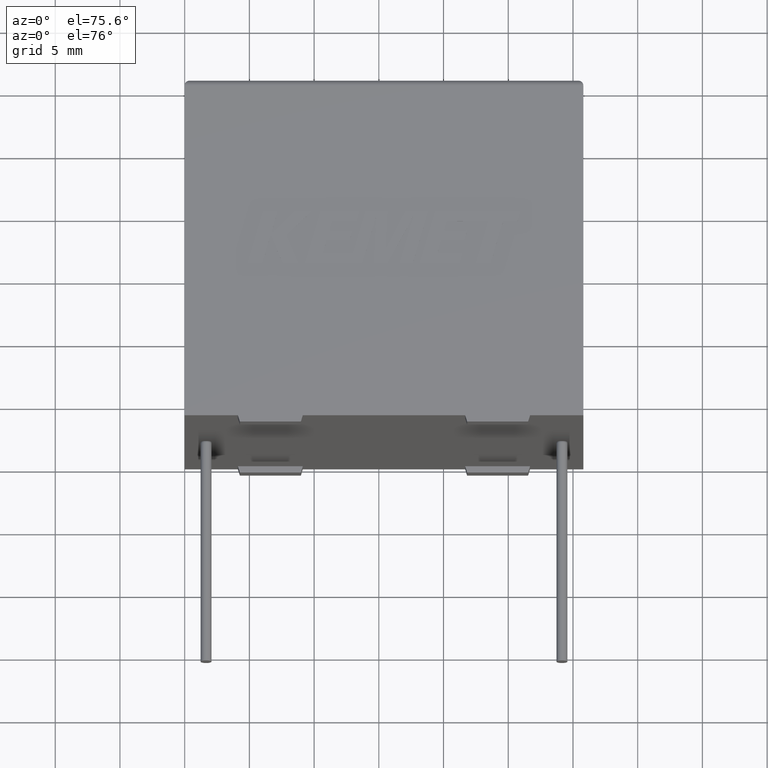
[diagram: clean part render]
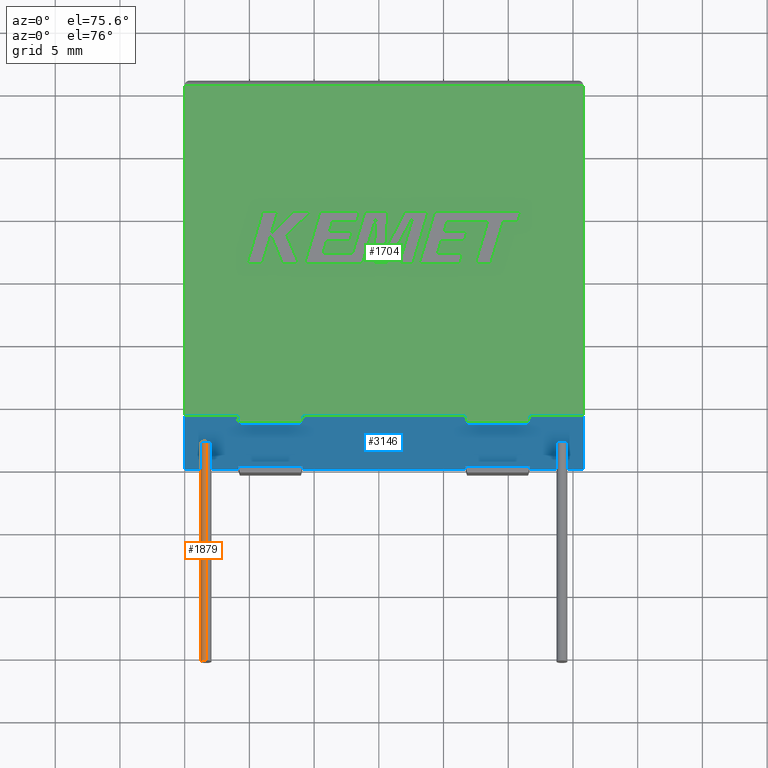
[diagram: same view with three faces highlighted in distinct colors, each labeled with its STEP entity id]
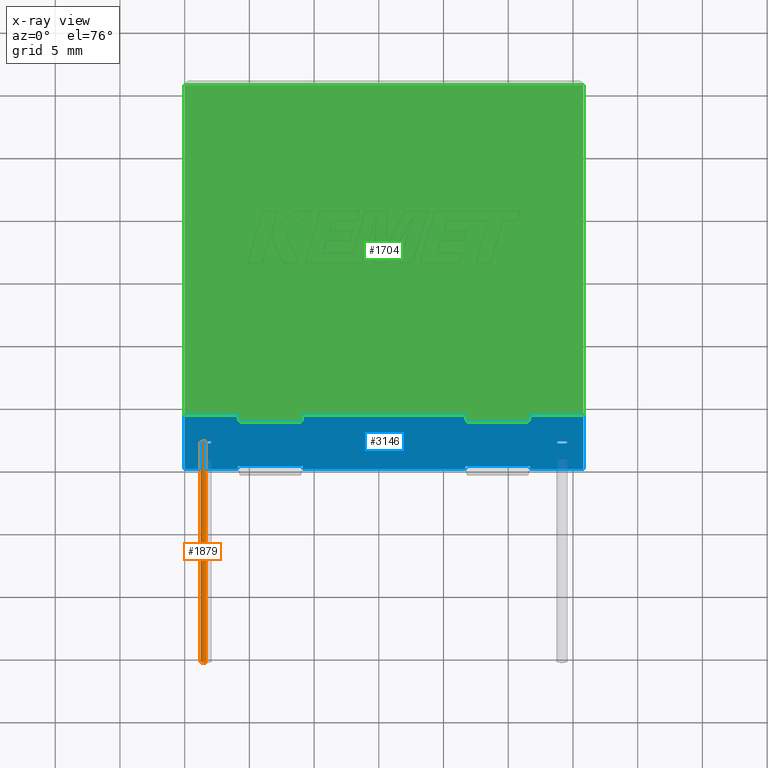
[diagram: x-ray of the same camera — body ghosted, the three highlighted faces saturated]
A machine part, auxiliary view with three faces highlighted in distinct colors.
The next image is the same camera in x-ray (body ghosted, the three faces saturated) — at least one of them is partly hidden behind the body in this view.
Their STEP definitions:

[orange] entity #1879 — the highlighted cylindrical surface (edge-blend (fillet) strip) has radius 0.425 mm, axis along (-0, 1, -0).
#19 = CYLINDRICAL_SURFACE ( 'NONE', #2516, 0.4250000000000000400 ) ;
#237 = CARTESIAN_POINT ( 'NONE',  ( 1.649999999999995000, -17.50000000000000000, 7.975000000000001400 ) ) ;
#409 = DIRECTION ( 'NONE',  ( -0.0000000000000000000, 1.000000000000000000, -0.0000000000000000000 ) ) ;
#505 = LINE ( 'NONE', #1714, #1366 ) ;
#575 = EDGE_CURVE ( 'NONE', #1153, #2689, #505, .T. ) ;
#791 = ORIENTED_EDGE ( 'NONE', *, *, #3199, .F. ) ;
#1040 = CARTESIAN_POINT ( 'NONE',  ( 1.649999999999995000, 0.0000000000000000000, 8.400000000000000400 ) ) ;
#1050 = AXIS2_PLACEMENT_3D ( 'NONE', #2162, #1392, #2398 ) ;
#1153 = VERTEX_POINT ( 'NONE', #1906 ) ;
#1194 = ORIENTED_EDGE ( 'NONE', *, *, #575, .T. ) ;
#1268 = DIRECTION ( 'NONE',  ( -0.0000000000000000000, 1.000000000000000000, -0.0000000000000000000 ) ) ;
#1315 = ORIENTED_EDGE ( 'NONE', *, *, #2764, .F. ) ;
#1366 = VECTOR ( 'NONE', #409, 1000.000000000000000 ) ;
#1392 = DIRECTION ( 'NONE',  ( 0.0000000000000000000, -1.000000000000000000, 0.0000000000000000000 ) ) ;
#1514 = CARTESIAN_POINT ( 'NONE',  ( 1.649999999999995000, -17.50000000000000000, 8.400000000000000400 ) ) ;
#1583 = DIRECTION ( 'NONE',  ( 0.0000000000000000000, 0.0000000000000000000, 1.000000000000000000 ) ) ;
#1633 = CARTESIAN_POINT ( 'NONE',  ( 1.649999999999995000, 0.0000000000000000000, 7.975000000000001400 ) ) ;
#1697 = VECTOR ( 'NONE', #2316, 1000.000000000000000 ) ;
#1714 = CARTESIAN_POINT ( 'NONE',  ( 1.649999999999995000, -17.50000000000000000, 8.825000000000001100 ) ) ;
#1770 = DIRECTION ( 'NONE',  ( 0.0000000000000000000, 0.0000000000000000000, 1.000000000000000000 ) ) ;
#1786 = AXIS2_PLACEMENT_3D ( 'NONE', #1040, #3068, #1583 ) ;
#1792 = EDGE_LOOP ( 'NONE', ( #1315, #791, #1194, #2293 ) ) ;
#1879 = ADVANCED_FACE ( 'NONE', ( #2111 ), #19, .T. ) ;
#1906 = CARTESIAN_POINT ( 'NONE',  ( 1.649999999999995000, -17.50000000000000000, 8.825000000000001100 ) ) ;
#2111 = FACE_OUTER_BOUND ( 'NONE', #1792, .T. ) ;
#2136 = VERTEX_POINT ( 'NONE', #1633 ) ;
#2162 = CARTESIAN_POINT ( 'NONE',  ( 1.649999999999995000, -17.50000000000000000, 8.400000000000000400 ) ) ;
#2263 = CARTESIAN_POINT ( 'NONE',  ( 1.649999999999995000, -17.50000000000000000, 7.975000000000001400 ) ) ;
#2293 = ORIENTED_EDGE ( 'NONE', *, *, #2786, .T. ) ;
#2316 = DIRECTION ( 'NONE',  ( -0.0000000000000000000, 1.000000000000000000, -0.0000000000000000000 ) ) ;
#2398 = DIRECTION ( 'NONE',  ( 0.0000000000000000000, 0.0000000000000000000, -1.000000000000000000 ) ) ;
#2415 = CARTESIAN_POINT ( 'NONE',  ( 1.649999999999995000, 0.0000000000000000000, 8.825000000000001100 ) ) ;
#2516 = AXIS2_PLACEMENT_3D ( 'NONE', #1514, #1268, #1770 ) ;
#2576 = CIRCLE ( 'NONE', #1786, 0.4250000000000000400 ) ;
#2689 = VERTEX_POINT ( 'NONE', #2415 ) ;
#2764 = EDGE_CURVE ( 'NONE', #3172, #2136, #2984, .T. ) ;
#2786 = EDGE_CURVE ( 'NONE', #2689, #2136, #2576, .T. ) ;
#2984 = LINE ( 'NONE', #237, #1697 ) ;
#3068 = DIRECTION ( 'NONE',  ( -0.0000000000000000000, -1.000000000000000000, -0.0000000000000000000 ) ) ;
#3172 = VERTEX_POINT ( 'NONE', #2263 ) ;
#3199 = EDGE_CURVE ( 'NONE', #1153, #3172, #3252, .T. ) ;
#3252 = CIRCLE ( 'NONE', #1050, 0.4250000000000000400 ) ;

[blue] entity #3146 — the highlighted planar face has unit normal (0, 1, 0).
#3 = CIRCLE ( 'NONE', #2461, 0.4250000000000000400 ) ;
#24 = ORIENTED_EDGE ( 'NONE', *, *, #3093, .T. ) ;
#25 = CIRCLE ( 'NONE', #1563, 0.4250000000000000400 ) ;
#27 = AXIS2_PLACEMENT_3D ( 'NONE', #544, #811, #818 ) ;
#81 = CARTESIAN_POINT ( 'NONE',  ( 26.68599999999999300, 2.519098465846106000E-016, 0.0000000000000000000 ) ) ;
#94 = DIRECTION ( 'NONE',  ( 0.0000000000000000000, 0.0000000000000000000, 1.000000000000000000 ) ) ;
#109 = CARTESIAN_POINT ( 'NONE',  ( 26.68599999999999300, 2.519098465846106000E-016, 15.84240000000000300 ) ) ;
#120 = DIRECTION ( 'NONE',  ( 0.0000000000000000000, 0.0000000000000000000, 1.000000000000000000 ) ) ;
#127 = ORIENTED_EDGE ( 'NONE', *, *, #1371, .T. ) ;
#149 = VECTOR ( 'NONE', #1870, 1000.000000000000000 ) ;
#169 = LINE ( 'NONE', #2084, #322 ) ;
#174 = EDGE_LOOP ( 'NONE', ( #1417, #2219, #127, #287, #1780, #1794, #1446, #1236, #2542, #810, #2011, #2307, #1672, #2709, #859, #24, #272, #1443, #2426, #2900 ) ) ;
#187 = LINE ( 'NONE', #1912, #149 ) ;
#219 = LINE ( 'NONE', #2427, #1323 ) ;
#227 = DIRECTION ( 'NONE',  ( 0.0000000000000000000, 1.000000000000000000, 0.0000000000000000000 ) ) ;
#259 = CARTESIAN_POINT ( 'NONE',  ( 0.0000000000000000000, 0.0000000000000000000, 0.0000000000000000000 ) ) ;
#272 = ORIENTED_EDGE ( 'NONE', *, *, #2663, .T. ) ;
#287 = ORIENTED_EDGE ( 'NONE', *, *, #2397, .T. ) ;
#297 = CARTESIAN_POINT ( 'NONE',  ( 30.80000000000000100, 0.0000000000000000000, 0.0000000000000000000 ) ) ;
#306 = VERTEX_POINT ( 'NONE', #81 ) ;
#318 = VECTOR ( 'NONE', #2423, 1000.000000000000000 ) ;
#322 = VECTOR ( 'NONE', #1822, 1000.000000000000000 ) ;
#360 = CARTESIAN_POINT ( 'NONE',  ( 4.113999999999999900, 1.084202172485504400E-016, 0.0000000000000000000 ) ) ;
#391 = DIRECTION ( 'NONE',  ( 0.0000000000000000000, 0.0000000000000000000, 1.000000000000000000 ) ) ;
#404 = CARTESIAN_POINT ( 'NONE',  ( 21.67359999999999300, 5.588308273869203400E-016, 16.80000000000000100 ) ) ;
#412 = VERTEX_POINT ( 'NONE', #360 ) ;
#414 = LINE ( 'NONE', #731, #1761 ) ;
#428 = EDGE_CURVE ( 'NONE', #1856, #569, #187, .T. ) ;
#437 = CARTESIAN_POINT ( 'NONE',  ( 9.126400000000000300, 5.588308273869203400E-016, 15.84240000000000300 ) ) ;
#465 = LINE ( 'NONE', #2417, #2039 ) ;
#484 = VECTOR ( 'NONE', #391, 1000.000000000000000 ) ;
#514 = CARTESIAN_POINT ( 'NONE',  ( 0.0000000000000000000, 0.0000000000000000000, 16.80000000000000100 ) ) ;
#530 = VECTOR ( 'NONE', #2667, 1000.000000000000000 ) ;
#543 = LINE ( 'NONE', #2756, #2043 ) ;
#544 = CARTESIAN_POINT ( 'NONE',  ( 29.14999999999999900, 0.0000000000000000000, 8.400000000000000400 ) ) ;
#569 = VERTEX_POINT ( 'NONE', #2225 ) ;
#623 = LINE ( 'NONE', #870, #1037 ) ;
#647 = VERTEX_POINT ( 'NONE', #2913 ) ;
#659 = DIRECTION ( 'NONE',  ( 0.0000000000000000000, 0.0000000000000000000, -1.000000000000000000 ) ) ;
#662 = DIRECTION ( 'NONE',  ( 0.0000000000000000000, 0.0000000000000000000, -1.000000000000000000 ) ) ;
#668 = CARTESIAN_POINT ( 'NONE',  ( 26.68599999999999300, 2.519098465846106000E-016, 0.9576000000000001200 ) ) ;
#687 = VERTEX_POINT ( 'NONE', #752 ) ;
#691 = LINE ( 'NONE', #2068, #2816 ) ;
#699 = EDGE_CURVE ( 'NONE', #569, #2766, #1580, .T. ) ;
#731 = CARTESIAN_POINT ( 'NONE',  ( 21.67359999999999300, 5.588308273869203400E-016, 0.9576000000000001200 ) ) ;
#746 = CARTESIAN_POINT ( 'NONE',  ( 26.68599999999999300, 0.0000000000000000000, 0.9576000000000063400 ) ) ;
#752 = CARTESIAN_POINT ( 'NONE',  ( 4.113999999999997200, 0.0000000000000000000, 16.80000000000000100 ) ) ;
#754 = LINE ( 'NONE', #3142, #484 ) ;
#782 = DIRECTION ( 'NONE',  ( 1.000000000000000000, 0.0000000000000000000, 0.0000000000000000000 ) ) ;
#797 = VECTOR ( 'NONE', #2646, 1000.000000000000000 ) ;
#805 = EDGE_CURVE ( 'NONE', #1836, #687, #543, .T. ) ;
#810 = ORIENTED_EDGE ( 'NONE', *, *, #428, .F. ) ;
#811 = DIRECTION ( 'NONE',  ( -0.0000000000000000000, 1.000000000000000000, -0.0000000000000000000 ) ) ;
#818 = DIRECTION ( 'NONE',  ( 0.0000000000000000000, 0.0000000000000000000, -1.000000000000000000 ) ) ;
#846 = EDGE_CURVE ( 'NONE', #2983, #412, #2214, .T. ) ;
#859 = ORIENTED_EDGE ( 'NONE', *, *, #1890, .F. ) ;
#869 = AXIS2_PLACEMENT_3D ( 'NONE', #2995, #227, #1998 ) ;
#870 = CARTESIAN_POINT ( 'NONE',  ( 0.0000000000000000000, 0.0000000000000000000, 0.0000000000000000000 ) ) ;
#885 = VERTEX_POINT ( 'NONE', #2544 ) ;
#900 = DIRECTION ( 'NONE',  ( 0.0000000000000000000, 0.0000000000000000000, 1.000000000000000000 ) ) ;
#906 = EDGE_LOOP ( 'NONE', ( #2270, #2056 ) ) ;
#909 = EDGE_CURVE ( 'NONE', #1345, #2651, #2479, .T. ) ;
#1020 = LINE ( 'NONE', #3003, #2513 ) ;
#1037 = VECTOR ( 'NONE', #3101, 1000.000000000000000 ) ;
#1040 = CARTESIAN_POINT ( 'NONE',  ( 1.649999999999995000, 0.0000000000000000000, 8.400000000000000400 ) ) ;
#1045 = CARTESIAN_POINT ( 'NONE',  ( 9.126400000000000300, 5.588308273869203400E-016, 16.80000000000000100 ) ) ;
#1068 = FACE_OUTER_BOUND ( 'NONE', #174, .T. ) ;
#1130 = CARTESIAN_POINT ( 'NONE',  ( 9.126400000000000300, 5.588308273869203400E-016, 0.0000000000000000000 ) ) ;
#1162 = EDGE_CURVE ( 'NONE', #2651, #1856, #465, .T. ) ;
#1236 = ORIENTED_EDGE ( 'NONE', *, *, #2966, .T. ) ;
#1238 = CARTESIAN_POINT ( 'NONE',  ( 26.68599999999999300, 0.0000000000000000000, 16.80000000000000100 ) ) ;
#1261 = DIRECTION ( 'NONE',  ( -0.0000000000000000000, -0.0000000000000000000, -1.000000000000000000 ) ) ;
#1304 = CARTESIAN_POINT ( 'NONE',  ( 9.126400000000000300, 0.0000000000000000000, 0.9576000000000063400 ) ) ;
#1311 = DIRECTION ( 'NONE',  ( 0.0000000000000000000, 0.0000000000000000000, 1.000000000000000000 ) ) ;
#1323 = VECTOR ( 'NONE', #2884, 1000.000000000000000 ) ;
#1345 = VERTEX_POINT ( 'NONE', #1510 ) ;
#1365 = CARTESIAN_POINT ( 'NONE',  ( 21.67359999999999300, 5.588308273869203400E-016, 15.84240000000000300 ) ) ;
#1371 = EDGE_CURVE ( 'NONE', #1881, #2118, #1020, .T. ) ;
#1390 = LINE ( 'NONE', #1644, #797 ) ;
#1417 = ORIENTED_EDGE ( 'NONE', *, *, #1641, .F. ) ;
#1422 = EDGE_CURVE ( 'NONE', #2136, #2689, #25, .T. ) ;
#1443 = ORIENTED_EDGE ( 'NONE', *, *, #805, .F. ) ;
#1444 = VERTEX_POINT ( 'NONE', #1579 ) ;
#1445 = EDGE_CURVE ( 'NONE', #1836, #2983, #691, .T. ) ;
#1446 = ORIENTED_EDGE ( 'NONE', *, *, #2278, .T. ) ;
#1458 = VERTEX_POINT ( 'NONE', #1045 ) ;
#1475 = PLANE ( 'NONE',  #869 ) ;
#1504 = FACE_BOUND ( 'NONE', #1919, .T. ) ;
#1510 = CARTESIAN_POINT ( 'NONE',  ( 21.67359999999999300, 5.588308273869203400E-016, 15.84240000000000300 ) ) ;
#1559 = VECTOR ( 'NONE', #94, 1000.000000000000000 ) ;
#1563 = AXIS2_PLACEMENT_3D ( 'NONE', #2033, #3032, #1311 ) ;
#1576 = CARTESIAN_POINT ( 'NONE',  ( 26.68599999999999300, 2.519098465846106000E-016, 15.84240000000000300 ) ) ;
#1579 = CARTESIAN_POINT ( 'NONE',  ( 4.114000000000000800, 2.519098465846106000E-016, 15.84240000000000300 ) ) ;
#1580 = LINE ( 'NONE', #2489, #2935 ) ;
#1583 = DIRECTION ( 'NONE',  ( 0.0000000000000000000, 0.0000000000000000000, 1.000000000000000000 ) ) ;
#1629 = VERTEX_POINT ( 'NONE', #404 ) ;
#1633 = CARTESIAN_POINT ( 'NONE',  ( 1.649999999999995000, 0.0000000000000000000, 7.975000000000001400 ) ) ;
#1641 = EDGE_CURVE ( 'NONE', #1821, #412, #219, .T. ) ;
#1643 = LINE ( 'NONE', #2831, #2879 ) ;
#1644 = CARTESIAN_POINT ( 'NONE',  ( 0.0000000000000000000, 0.0000000000000000000, 0.0000000000000000000 ) ) ;
#1649 = EDGE_CURVE ( 'NONE', #885, #2753, #2693, .T. ) ;
#1672 = ORIENTED_EDGE ( 'NONE', *, *, #2123, .T. ) ;
#1761 = VECTOR ( 'NONE', #2507, 1000.000000000000000 ) ;
#1780 = ORIENTED_EDGE ( 'NONE', *, *, #1832, .F. ) ;
#1786 = AXIS2_PLACEMENT_3D ( 'NONE', #1040, #3068, #1583 ) ;
#1794 = ORIENTED_EDGE ( 'NONE', *, *, #1649, .T. ) ;
#1821 = VERTEX_POINT ( 'NONE', #2744 ) ;
#1822 = DIRECTION ( 'NONE',  ( 1.000000000000000000, 0.0000000000000000000, 0.0000000000000000000 ) ) ;
#1823 = VECTOR ( 'NONE', #2933, 1000.000000000000000 ) ;
#1832 = EDGE_CURVE ( 'NONE', #885, #3097, #414, .T. ) ;
#1836 = VERTEX_POINT ( 'NONE', #514 ) ;
#1856 = VERTEX_POINT ( 'NONE', #1238 ) ;
#1870 = DIRECTION ( 'NONE',  ( 1.000000000000000000, 0.0000000000000000000, 0.0000000000000000000 ) ) ;
#1881 = VERTEX_POINT ( 'NONE', #1304 ) ;
#1890 = EDGE_CURVE ( 'NONE', #2379, #1458, #1643, .T. ) ;
#1912 = CARTESIAN_POINT ( 'NONE',  ( 0.0000000000000000000, 0.0000000000000000000, 16.80000000000000100 ) ) ;
#1919 = EDGE_LOOP ( 'NONE', ( #2844, #2827 ) ) ;
#1945 = CARTESIAN_POINT ( 'NONE',  ( 4.114000000000000800, 2.519098465846106000E-016, 15.84240000000000300 ) ) ;
#1998 = DIRECTION ( 'NONE',  ( 0.0000000000000000000, -0.0000000000000000000, 1.000000000000000000 ) ) ;
#2002 = EDGE_CURVE ( 'NONE', #1458, #1629, #169, .T. ) ;
#2011 = ORIENTED_EDGE ( 'NONE', *, *, #1162, .F. ) ;
#2021 = DIRECTION ( 'NONE',  ( -0.0000000000000000000, -0.0000000000000000000, -1.000000000000000000 ) ) ;
#2033 = CARTESIAN_POINT ( 'NONE',  ( 1.649999999999995000, 0.0000000000000000000, 8.400000000000000400 ) ) ;
#2039 = VECTOR ( 'NONE', #900, 1000.000000000000000 ) ;
#2043 = VECTOR ( 'NONE', #3011, 1000.000000000000000 ) ;
#2054 = EDGE_CURVE ( 'NONE', #2650, #647, #2838, .T. ) ;
#2056 = ORIENTED_EDGE ( 'NONE', *, *, #1422, .F. ) ;
#2068 = CARTESIAN_POINT ( 'NONE',  ( 0.0000000000000000000, 0.0000000000000000000, 16.80000000000000100 ) ) ;
#2084 = CARTESIAN_POINT ( 'NONE',  ( 0.0000000000000000000, 0.0000000000000000000, 16.80000000000000100 ) ) ;
#2096 = FACE_BOUND ( 'NONE', #906, .T. ) ;
#2118 = VERTEX_POINT ( 'NONE', #1130 ) ;
#2123 = EDGE_CURVE ( 'NONE', #1345, #1629, #3227, .T. ) ;
#2136 = VERTEX_POINT ( 'NONE', #1633 ) ;
#2212 = CARTESIAN_POINT ( 'NONE',  ( 29.14999999999999900, 0.0000000000000000000, 8.400000000000000400 ) ) ;
#2214 = LINE ( 'NONE', #259, #2257 ) ;
#2219 = ORIENTED_EDGE ( 'NONE', *, *, #2333, .F. ) ;
#2225 = CARTESIAN_POINT ( 'NONE',  ( 30.80000000000000100, 0.0000000000000000000, 16.80000000000000100 ) ) ;
#2257 = VECTOR ( 'NONE', #782, 1000.000000000000000 ) ;
#2270 = ORIENTED_EDGE ( 'NONE', *, *, #2786, .F. ) ;
#2278 = EDGE_CURVE ( 'NONE', #2753, #306, #2377, .T. ) ;
#2307 = ORIENTED_EDGE ( 'NONE', *, *, #909, .F. ) ;
#2333 = EDGE_CURVE ( 'NONE', #1881, #1821, #2998, .T. ) ;
#2377 = LINE ( 'NONE', #2445, #2571 ) ;
#2379 = VERTEX_POINT ( 'NONE', #437 ) ;
#2397 = EDGE_CURVE ( 'NONE', #2118, #3097, #1390, .T. ) ;
#2415 = CARTESIAN_POINT ( 'NONE',  ( 1.649999999999995000, 0.0000000000000000000, 8.825000000000001100 ) ) ;
#2417 = CARTESIAN_POINT ( 'NONE',  ( 26.68599999999999300, 2.519098465846106000E-016, 15.84240000000000300 ) ) ;
#2423 = DIRECTION ( 'NONE',  ( -1.000000000000000000, -6.123233995736769700E-017, 0.0000000000000000000 ) ) ;
#2426 = ORIENTED_EDGE ( 'NONE', *, *, #1445, .T. ) ;
#2427 = CARTESIAN_POINT ( 'NONE',  ( 4.114000000000000800, 2.519098465846106000E-016, 0.9576000000000001200 ) ) ;
#2433 = DIRECTION ( 'NONE',  ( -0.0000000000000000000, 1.000000000000000000, -0.0000000000000000000 ) ) ;
#2445 = CARTESIAN_POINT ( 'NONE',  ( 26.68599999999999300, 2.519098465846106000E-016, 0.9576000000000001200 ) ) ;
#2461 = AXIS2_PLACEMENT_3D ( 'NONE', #2212, #2433, #659 ) ;
#2479 = LINE ( 'NONE', #1576, #2628 ) ;
#2480 = DIRECTION ( 'NONE',  ( 0.0000000000000000000, 0.0000000000000000000, -1.000000000000000000 ) ) ;
#2489 = CARTESIAN_POINT ( 'NONE',  ( 30.80000000000000100, 0.0000000000000000000, 16.80000000000000100 ) ) ;
#2507 = DIRECTION ( 'NONE',  ( 0.0000000000000000000, 0.0000000000000000000, -1.000000000000000000 ) ) ;
#2513 = VECTOR ( 'NONE', #2480, 1000.000000000000000 ) ;
#2542 = ORIENTED_EDGE ( 'NONE', *, *, #699, .F. ) ;
#2544 = CARTESIAN_POINT ( 'NONE',  ( 21.67359999999999300, 0.0000000000000000000, 0.9576000000000063400 ) ) ;
#2571 = VECTOR ( 'NONE', #662, 1000.000000000000000 ) ;
#2576 = CIRCLE ( 'NONE', #1786, 0.4250000000000000400 ) ;
#2590 = CARTESIAN_POINT ( 'NONE',  ( 29.14999999999999900, 0.0000000000000000000, 8.825000000000001100 ) ) ;
#2628 = VECTOR ( 'NONE', #3039, 1000.000000000000000 ) ;
#2646 = DIRECTION ( 'NONE',  ( 1.000000000000000000, 0.0000000000000000000, 0.0000000000000000000 ) ) ;
#2650 = VERTEX_POINT ( 'NONE', #2590 ) ;
#2651 = VERTEX_POINT ( 'NONE', #109 ) ;
#2663 = EDGE_CURVE ( 'NONE', #1444, #687, #754, .T. ) ;
#2667 = DIRECTION ( 'NONE',  ( 1.000000000000000000, -6.123233995736769700E-017, 0.0000000000000000000 ) ) ;
#2689 = VERTEX_POINT ( 'NONE', #2415 ) ;
#2693 = LINE ( 'NONE', #668, #530 ) ;
#2697 = CARTESIAN_POINT ( 'NONE',  ( 4.114000000000000800, 2.519098465846106000E-016, 0.9576000000000001200 ) ) ;
#2709 = ORIENTED_EDGE ( 'NONE', *, *, #2002, .F. ) ;
#2744 = CARTESIAN_POINT ( 'NONE',  ( 4.114000000000000800, 0.0000000000000000000, 0.9576000000000063400 ) ) ;
#2753 = VERTEX_POINT ( 'NONE', #746 ) ;
#2756 = CARTESIAN_POINT ( 'NONE',  ( 0.0000000000000000000, 0.0000000000000000000, 16.80000000000000100 ) ) ;
#2766 = VERTEX_POINT ( 'NONE', #297 ) ;
#2786 = EDGE_CURVE ( 'NONE', #2689, #2136, #2576, .T. ) ;
#2816 = VECTOR ( 'NONE', #2021, 1000.000000000000000 ) ;
#2827 = ORIENTED_EDGE ( 'NONE', *, *, #2993, .T. ) ;
#2829 = LINE ( 'NONE', #1945, #1823 ) ;
#2831 = CARTESIAN_POINT ( 'NONE',  ( 9.126400000000000300, 5.588308273869203400E-016, 15.84240000000000300 ) ) ;
#2838 = CIRCLE ( 'NONE', #27, 0.4250000000000000400 ) ;
#2844 = ORIENTED_EDGE ( 'NONE', *, *, #2054, .T. ) ;
#2854 = CARTESIAN_POINT ( 'NONE',  ( 0.0000000000000000000, 0.0000000000000000000, 0.0000000000000000000 ) ) ;
#2879 = VECTOR ( 'NONE', #120, 1000.000000000000000 ) ;
#2884 = DIRECTION ( 'NONE',  ( 0.0000000000000000000, 0.0000000000000000000, -1.000000000000000000 ) ) ;
#2900 = ORIENTED_EDGE ( 'NONE', *, *, #846, .T. ) ;
#2913 = CARTESIAN_POINT ( 'NONE',  ( 29.14999999999999900, 0.0000000000000000000, 7.975000000000001400 ) ) ;
#2933 = DIRECTION ( 'NONE',  ( -1.000000000000000000, -6.123233995736769700E-017, -0.0000000000000000000 ) ) ;
#2935 = VECTOR ( 'NONE', #1261, 1000.000000000000000 ) ;
#2942 = CARTESIAN_POINT ( 'NONE',  ( 21.67359999999998600, 0.0000000000000000000, 0.0000000000000000000 ) ) ;
#2966 = EDGE_CURVE ( 'NONE', #306, #2766, #623, .T. ) ;
#2983 = VERTEX_POINT ( 'NONE', #2854 ) ;
#2993 = EDGE_CURVE ( 'NONE', #647, #2650, #3, .T. ) ;
#2995 = CARTESIAN_POINT ( 'NONE',  ( 0.0000000000000000000, 0.0000000000000000000, 16.80000000000000100 ) ) ;
#2998 = LINE ( 'NONE', #2697, #318 ) ;
#3003 = CARTESIAN_POINT ( 'NONE',  ( 9.126400000000000300, 5.588308273869203400E-016, 0.9576000000000001200 ) ) ;
#3011 = DIRECTION ( 'NONE',  ( 1.000000000000000000, 0.0000000000000000000, 0.0000000000000000000 ) ) ;
#3032 = DIRECTION ( 'NONE',  ( -0.0000000000000000000, -1.000000000000000000, -0.0000000000000000000 ) ) ;
#3039 = DIRECTION ( 'NONE',  ( 1.000000000000000000, -6.123233995736769700E-017, -0.0000000000000000000 ) ) ;
#3068 = DIRECTION ( 'NONE',  ( -0.0000000000000000000, -1.000000000000000000, -0.0000000000000000000 ) ) ;
#3093 = EDGE_CURVE ( 'NONE', #2379, #1444, #2829, .T. ) ;
#3097 = VERTEX_POINT ( 'NONE', #2942 ) ;
#3101 = DIRECTION ( 'NONE',  ( 1.000000000000000000, 0.0000000000000000000, 0.0000000000000000000 ) ) ;
#3142 = CARTESIAN_POINT ( 'NONE',  ( 4.114000000000000800, 2.519098465846106000E-016, 15.84240000000000300 ) ) ;
#3146 = ADVANCED_FACE ( 'NONE', ( #1504, #1068, #2096 ), #1475, .F. ) ;
#3227 = LINE ( 'NONE', #1365, #1559 ) ;

[green] entity #1704 — the highlighted planar face has unit normal (0, 0, -1).
#85 = AXIS2_PLACEMENT_3D ( 'NONE', #2469, #1479, #2256 ) ;
#87 = EDGE_CURVE ( 'NONE', #2310, #857, #1889, .T. ) ;
#149 = VECTOR ( 'NONE', #1870, 1000.000000000000000 ) ;
#169 = LINE ( 'NONE', #2084, #322 ) ;
#187 = LINE ( 'NONE', #1912, #149 ) ;
#218 = CARTESIAN_POINT ( 'NONE',  ( 4.264000000000000200, -0.4999999999999997800, 16.80000000000000100 ) ) ;
#221 = PLANE ( 'NONE',  #85 ) ;
#308 = LINE ( 'NONE', #1924, #2751 ) ;
#312 = DIRECTION ( 'NONE',  ( -0.2873478855663453300, -0.9578262852211513200, 0.0000000000000000000 ) ) ;
#322 = VECTOR ( 'NONE', #1822, 1000.000000000000000 ) ;
#338 = VECTOR ( 'NONE', #2174, 1000.000000000000200 ) ;
#385 = CARTESIAN_POINT ( 'NONE',  ( 4.114000000000000800, 2.519098465846106000E-016, 16.80000000000000100 ) ) ;
#404 = CARTESIAN_POINT ( 'NONE',  ( 21.67359999999999300, 5.588308273869203400E-016, 16.80000000000000100 ) ) ;
#428 = EDGE_CURVE ( 'NONE', #1856, #569, #187, .T. ) ;
#476 = VECTOR ( 'NONE', #924, 1000.000000000000000 ) ;
#495 = EDGE_CURVE ( 'NONE', #687, #2310, #2006, .T. ) ;
#506 = ORIENTED_EDGE ( 'NONE', *, *, #656, .T. ) ;
#514 = CARTESIAN_POINT ( 'NONE',  ( 0.0000000000000000000, 0.0000000000000000000, 16.80000000000000100 ) ) ;
#516 = VECTOR ( 'NONE', #588, 1000.000000000000000 ) ;
#529 = ORIENTED_EDGE ( 'NONE', *, *, #3057, .T. ) ;
#543 = LINE ( 'NONE', #2756, #2043 ) ;
#569 = VERTEX_POINT ( 'NONE', #2225 ) ;
#588 = DIRECTION ( 'NONE',  ( -1.000000000000000000, -2.300743087355709900E-017, 0.0000000000000000000 ) ) ;
#656 = EDGE_CURVE ( 'NONE', #569, #2957, #2742, .T. ) ;
#687 = VERTEX_POINT ( 'NONE', #752 ) ;
#749 = CARTESIAN_POINT ( 'NONE',  ( 21.82359999999999500, -0.4999999999999998900, 16.80000000000000100 ) ) ;
#752 = CARTESIAN_POINT ( 'NONE',  ( 4.113999999999997200, 0.0000000000000000000, 16.80000000000000100 ) ) ;
#784 = EDGE_CURVE ( 'NONE', #857, #1458, #2086, .T. ) ;
#805 = EDGE_CURVE ( 'NONE', #1836, #687, #543, .T. ) ;
#833 = LINE ( 'NONE', #1597, #516 ) ;
#857 = VERTEX_POINT ( 'NONE', #1062 ) ;
#881 = CARTESIAN_POINT ( 'NONE',  ( 30.80000000000000100, 26.30000000000000100, 16.80000000000000100 ) ) ;
#891 = CARTESIAN_POINT ( 'NONE',  ( 26.53599999999999400, -0.4999999999999997800, 16.80000000000000100 ) ) ;
#924 = DIRECTION ( 'NONE',  ( -0.2873478855663466100, 0.9578262852211509900, 0.0000000000000000000 ) ) ;
#946 = VECTOR ( 'NONE', #1988, 1000.000000000000000 ) ;
#968 = ORIENTED_EDGE ( 'NONE', *, *, #784, .T. ) ;
#989 = CARTESIAN_POINT ( 'NONE',  ( 8.976399999999998200, -0.4999999999999998900, 16.80000000000000100 ) ) ;
#1044 = EDGE_CURVE ( 'NONE', #1856, #3001, #1090, .T. ) ;
#1045 = CARTESIAN_POINT ( 'NONE',  ( 9.126400000000000300, 5.588308273869203400E-016, 16.80000000000000100 ) ) ;
#1055 = CARTESIAN_POINT ( 'NONE',  ( 0.0000000000000000000, 26.30000000000000100, 16.80000000000000100 ) ) ;
#1062 = CARTESIAN_POINT ( 'NONE',  ( 8.976399999999998200, -0.4999999999999998900, 16.80000000000000100 ) ) ;
#1089 = CARTESIAN_POINT ( 'NONE',  ( 26.68599999999999300, 2.519098465846106000E-016, 16.80000000000000100 ) ) ;
#1090 = LINE ( 'NONE', #1089, #1694 ) ;
#1159 = ORIENTED_EDGE ( 'NONE', *, *, #87, .T. ) ;
#1200 = FACE_OUTER_BOUND ( 'NONE', #1960, .T. ) ;
#1238 = CARTESIAN_POINT ( 'NONE',  ( 26.68599999999999300, 0.0000000000000000000, 16.80000000000000100 ) ) ;
#1328 = CARTESIAN_POINT ( 'NONE',  ( 0.0000000000000000000, 26.30000000000000100, 16.80000000000000100 ) ) ;
#1421 = VERTEX_POINT ( 'NONE', #1055 ) ;
#1450 = DIRECTION ( 'NONE',  ( -1.000000000000000000, 0.0000000000000000000, 0.0000000000000000000 ) ) ;
#1458 = VERTEX_POINT ( 'NONE', #1045 ) ;
#1479 = DIRECTION ( 'NONE',  ( 0.0000000000000000000, 0.0000000000000000000, -1.000000000000000000 ) ) ;
#1512 = EDGE_CURVE ( 'NONE', #2957, #1421, #1733, .T. ) ;
#1577 = VECTOR ( 'NONE', #2515, 1000.000000000000000 ) ;
#1597 = CARTESIAN_POINT ( 'NONE',  ( 26.53599999999999400, -0.4999999999999997800, 16.80000000000000100 ) ) ;
#1629 = VERTEX_POINT ( 'NONE', #404 ) ;
#1650 = ORIENTED_EDGE ( 'NONE', *, *, #3241, .F. ) ;
#1694 = VECTOR ( 'NONE', #312, 1000.000000000000200 ) ;
#1703 = CARTESIAN_POINT ( 'NONE',  ( 4.264000000000000200, -0.4999999999999997800, 16.80000000000000100 ) ) ;
#1704 = ADVANCED_FACE ( 'NONE', ( #1200 ), #221, .F. ) ;
#1726 = ORIENTED_EDGE ( 'NONE', *, *, #1512, .T. ) ;
#1733 = LINE ( 'NONE', #1328, #2390 ) ;
#1748 = LINE ( 'NONE', #2441, #476 ) ;
#1749 = ORIENTED_EDGE ( 'NONE', *, *, #495, .T. ) ;
#1822 = DIRECTION ( 'NONE',  ( 1.000000000000000000, 0.0000000000000000000, 0.0000000000000000000 ) ) ;
#1836 = VERTEX_POINT ( 'NONE', #514 ) ;
#1856 = VERTEX_POINT ( 'NONE', #1238 ) ;
#1868 = VERTEX_POINT ( 'NONE', #749 ) ;
#1870 = DIRECTION ( 'NONE',  ( 1.000000000000000000, 0.0000000000000000000, 0.0000000000000000000 ) ) ;
#1889 = LINE ( 'NONE', #218, #946 ) ;
#1912 = CARTESIAN_POINT ( 'NONE',  ( 0.0000000000000000000, 0.0000000000000000000, 16.80000000000000100 ) ) ;
#1923 = CARTESIAN_POINT ( 'NONE',  ( 30.80000000000000100, 0.0000000000000000000, 16.80000000000000100 ) ) ;
#1924 = CARTESIAN_POINT ( 'NONE',  ( 0.0000000000000000000, 0.0000000000000000000, 16.80000000000000100 ) ) ;
#1960 = EDGE_LOOP ( 'NONE', ( #506, #1726, #529, #2465, #1749, #1159, #968, #2862, #1650, #3034, #2140, #2342 ) ) ;
#1988 = DIRECTION ( 'NONE',  ( 1.000000000000000000, -2.300743087355709900E-017, 0.0000000000000000000 ) ) ;
#2002 = EDGE_CURVE ( 'NONE', #1458, #1629, #169, .T. ) ;
#2006 = LINE ( 'NONE', #385, #338 ) ;
#2043 = VECTOR ( 'NONE', #3011, 1000.000000000000000 ) ;
#2084 = CARTESIAN_POINT ( 'NONE',  ( 0.0000000000000000000, 0.0000000000000000000, 16.80000000000000100 ) ) ;
#2086 = LINE ( 'NONE', #989, #1577 ) ;
#2140 = ORIENTED_EDGE ( 'NONE', *, *, #1044, .F. ) ;
#2174 = DIRECTION ( 'NONE',  ( 0.2873478855663453300, -0.9578262852211513200, 0.0000000000000000000 ) ) ;
#2225 = CARTESIAN_POINT ( 'NONE',  ( 30.80000000000000100, 0.0000000000000000000, 16.80000000000000100 ) ) ;
#2256 = DIRECTION ( 'NONE',  ( -1.000000000000000000, 0.0000000000000000000, -0.0000000000000000000 ) ) ;
#2261 = VECTOR ( 'NONE', #2673, 1000.000000000000000 ) ;
#2310 = VERTEX_POINT ( 'NONE', #1703 ) ;
#2342 = ORIENTED_EDGE ( 'NONE', *, *, #428, .T. ) ;
#2390 = VECTOR ( 'NONE', #1450, 1000.000000000000000 ) ;
#2441 = CARTESIAN_POINT ( 'NONE',  ( 21.82359999999999500, -0.4999999999999998900, 16.80000000000000100 ) ) ;
#2465 = ORIENTED_EDGE ( 'NONE', *, *, #805, .T. ) ;
#2469 = CARTESIAN_POINT ( 'NONE',  ( 0.0000000000000000000, 0.0000000000000000000, 16.80000000000000100 ) ) ;
#2515 = DIRECTION ( 'NONE',  ( 0.2873478855663466100, 0.9578262852211509900, 0.0000000000000000000 ) ) ;
#2559 = EDGE_CURVE ( 'NONE', #3001, #1868, #833, .T. ) ;
#2673 = DIRECTION ( 'NONE',  ( 0.0000000000000000000, 1.000000000000000000, 0.0000000000000000000 ) ) ;
#2742 = LINE ( 'NONE', #1923, #2261 ) ;
#2751 = VECTOR ( 'NONE', #3191, 1000.000000000000000 ) ;
#2756 = CARTESIAN_POINT ( 'NONE',  ( 0.0000000000000000000, 0.0000000000000000000, 16.80000000000000100 ) ) ;
#2862 = ORIENTED_EDGE ( 'NONE', *, *, #2002, .T. ) ;
#2957 = VERTEX_POINT ( 'NONE', #881 ) ;
#3001 = VERTEX_POINT ( 'NONE', #891 ) ;
#3011 = DIRECTION ( 'NONE',  ( 1.000000000000000000, 0.0000000000000000000, 0.0000000000000000000 ) ) ;
#3034 = ORIENTED_EDGE ( 'NONE', *, *, #2559, .F. ) ;
#3057 = EDGE_CURVE ( 'NONE', #1421, #1836, #308, .T. ) ;
#3191 = DIRECTION ( 'NONE',  ( -0.0000000000000000000, -1.000000000000000000, -0.0000000000000000000 ) ) ;
#3241 = EDGE_CURVE ( 'NONE', #1868, #1629, #1748, .T. ) ;